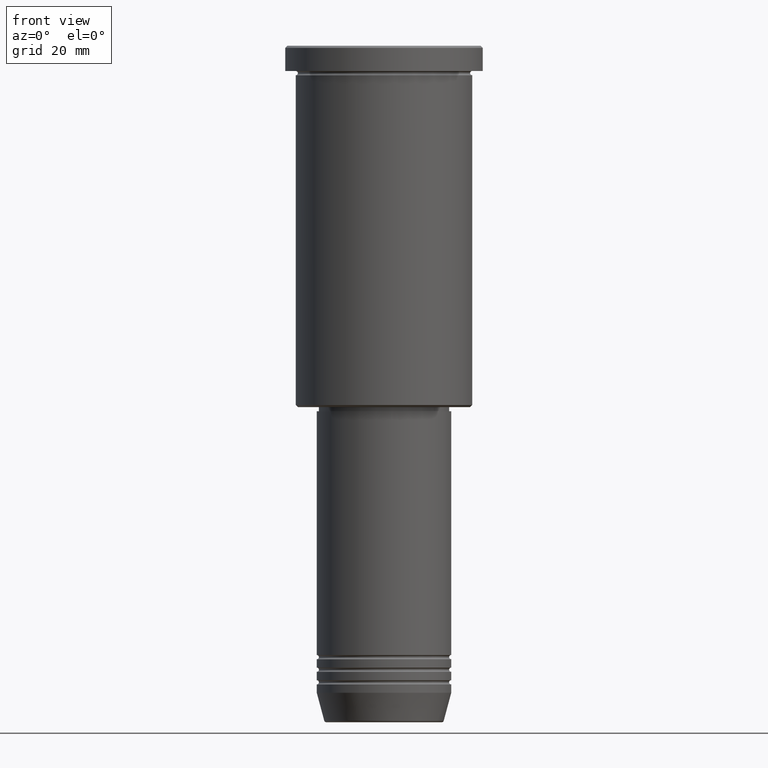
[diagram: clean part render]
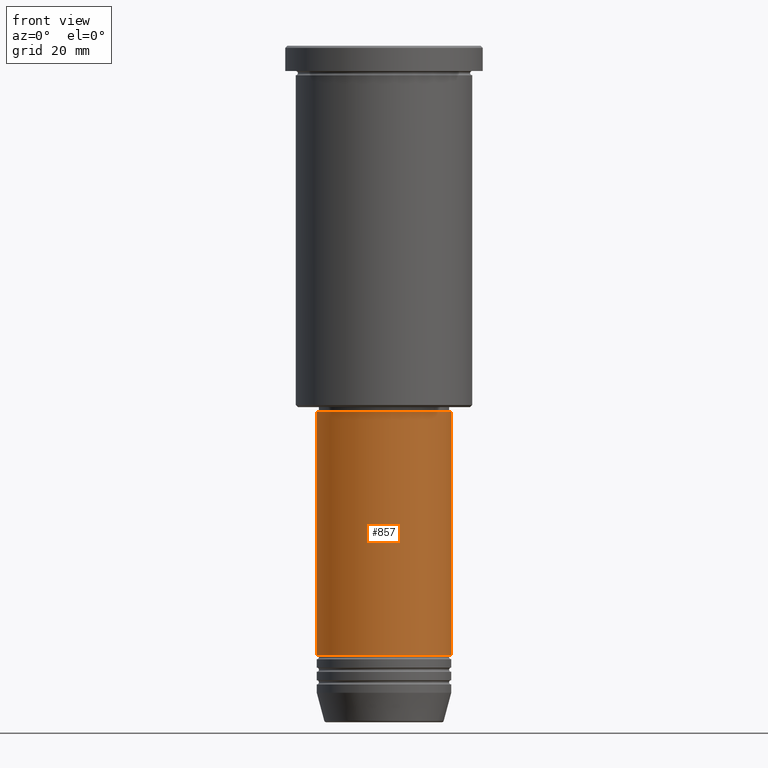
[diagram: same view with one face highlighted and labeled with its STEP entity id]
A machine part, front view. The second image highlights one B-rep face of the part: STEP entity #857.
In plain terms, the highlighted cylindrical surface (partial cylindrical patch) has radius 16 mm, axis along (-0, -0, 1).
Its self-contained STEP definition (entity closure, byte-faithful):
#34 = AXIS2_PLACEMENT_3D ( 'NONE', #300, #378, #316 ) ;
#144 = CIRCLE ( 'NONE', #809, 16.00000000000000000 ) ;
#157 = ORIENTED_EDGE ( 'NONE', *, *, #231, .F. ) ;
#192 = CARTESIAN_POINT ( 'NONE',  ( -16.00000000000000000, 1.959434878635765131E-15, -144.9999999999999716 ) ) ;
#231 = EDGE_CURVE ( 'NONE', #1149, #633, #282, .T. ) ;
#282 = LINE ( 'NONE', #472, #398 ) ;
#297 = CARTESIAN_POINT ( 'NONE',  ( 16.00000000000000000, 0.000000000000000000, 0.000000000000000000 ) ) ;
#300 = CARTESIAN_POINT ( 'NONE',  ( 0.000000000000000000, 0.000000000000000000, -144.9999999999999716 ) ) ;
#316 = DIRECTION ( 'NONE',  ( 1.000000000000000000, 0.000000000000000000, 0.000000000000000000 ) ) ;
#319 = CARTESIAN_POINT ( 'NONE',  ( 16.00000000000000000, 0.000000000000000000, -144.9999999999999716 ) ) ;
#329 = EDGE_CURVE ( 'NONE', #633, #833, #144, .T. ) ;
#335 = CARTESIAN_POINT ( 'NONE',  ( 16.00000000000000000, 0.000000000000000000, -87.00000000000000000 ) ) ;
#351 = DIRECTION ( 'NONE',  ( 1.000000000000000000, 0.000000000000000000, 0.000000000000000000 ) ) ;
#378 = DIRECTION ( 'NONE',  ( -0.000000000000000000, -0.000000000000000000, 1.000000000000000000 ) ) ;
#383 = LINE ( 'NONE', #297, #940 ) ;
#386 = CARTESIAN_POINT ( 'NONE',  ( -16.00000000000000000, 1.959434878635765131E-15, -87.00000000000000000 ) ) ;
#398 = VECTOR ( 'NONE', #810, 1000.000000000000000 ) ;
#472 = CARTESIAN_POINT ( 'NONE',  ( -16.00000000000000000, 1.959434878635765131E-15, 0.000000000000000000 ) ) ;
#497 = CIRCLE ( 'NONE', #34, 16.00000000000000000 ) ;
#633 = VERTEX_POINT ( 'NONE', #386 ) ;
#638 = DIRECTION ( 'NONE',  ( -0.000000000000000000, -0.000000000000000000, 1.000000000000000000 ) ) ;
#640 = CARTESIAN_POINT ( 'NONE',  ( 0.000000000000000000, 0.000000000000000000, 0.000000000000000000 ) ) ;
#641 = VERTEX_POINT ( 'NONE', #319 ) ;
#648 = EDGE_CURVE ( 'NONE', #1149, #641, #497, .T. ) ;
#727 = CARTESIAN_POINT ( 'NONE',  ( 0.000000000000000000, 0.000000000000000000, -87.00000000000000000 ) ) ;
#809 = AXIS2_PLACEMENT_3D ( 'NONE', #727, #638, #1008 ) ;
#810 = DIRECTION ( 'NONE',  ( -0.000000000000000000, -0.000000000000000000, 1.000000000000000000 ) ) ;
#825 = ORIENTED_EDGE ( 'NONE', *, *, #1086, .T. ) ;
#833 = VERTEX_POINT ( 'NONE', #335 ) ;
#857 = ADVANCED_FACE ( 'NONE', ( #1160 ), #1082, .T. ) ;
#895 = EDGE_LOOP ( 'NONE', ( #157, #924, #825, #980 ) ) ;
#900 = AXIS2_PLACEMENT_3D ( 'NONE', #640, #1073, #351 ) ;
#924 = ORIENTED_EDGE ( 'NONE', *, *, #648, .T. ) ;
#940 = VECTOR ( 'NONE', #1107, 1000.000000000000000 ) ;
#980 = ORIENTED_EDGE ( 'NONE', *, *, #329, .F. ) ;
#1008 = DIRECTION ( 'NONE',  ( 1.000000000000000000, 0.000000000000000000, 0.000000000000000000 ) ) ;
#1073 = DIRECTION ( 'NONE',  ( -0.000000000000000000, -0.000000000000000000, 1.000000000000000000 ) ) ;
#1082 = CYLINDRICAL_SURFACE ( 'NONE', #900, 16.00000000000000000 ) ;
#1086 = EDGE_CURVE ( 'NONE', #641, #833, #383, .T. ) ;
#1107 = DIRECTION ( 'NONE',  ( -0.000000000000000000, -0.000000000000000000, 1.000000000000000000 ) ) ;
#1149 = VERTEX_POINT ( 'NONE', #192 ) ;
#1160 = FACE_OUTER_BOUND ( 'NONE', #895, .T. ) ;